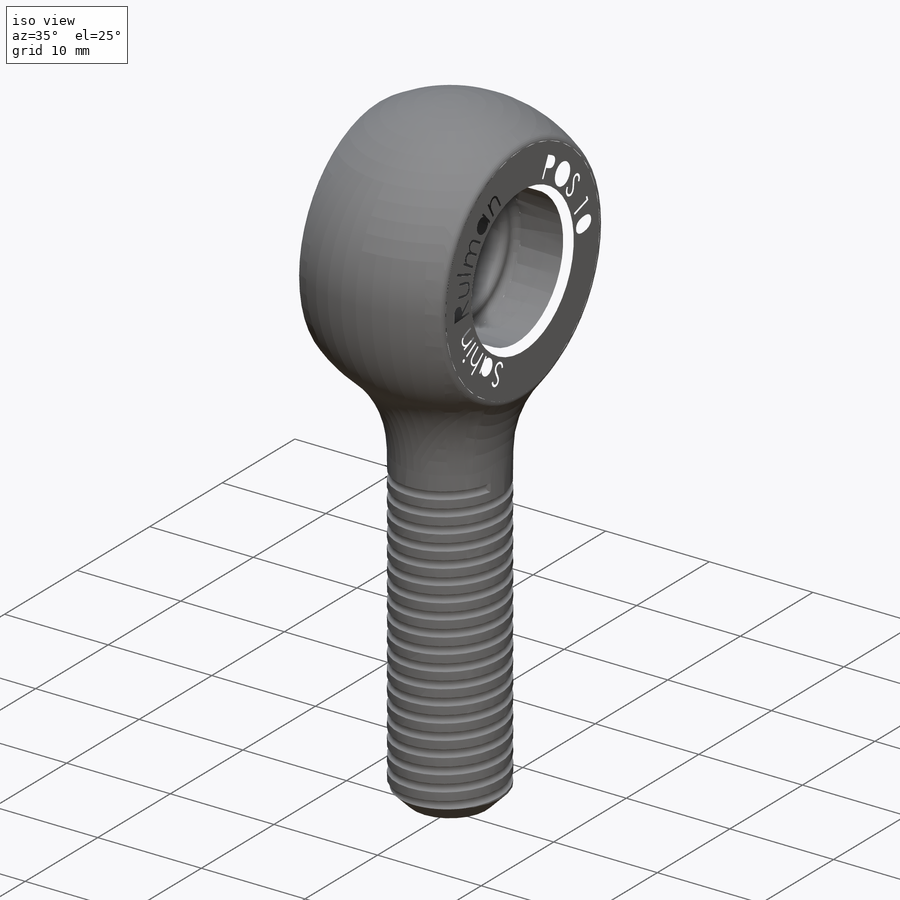
[diagram: iso view]
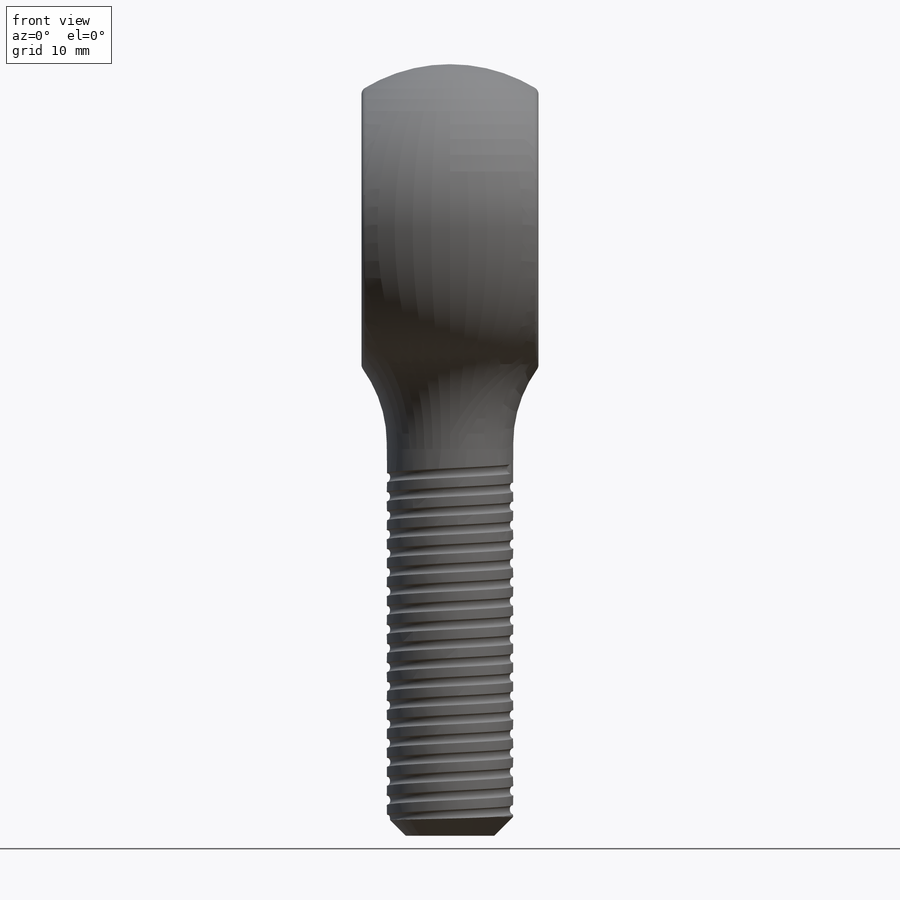
[diagram: front view]
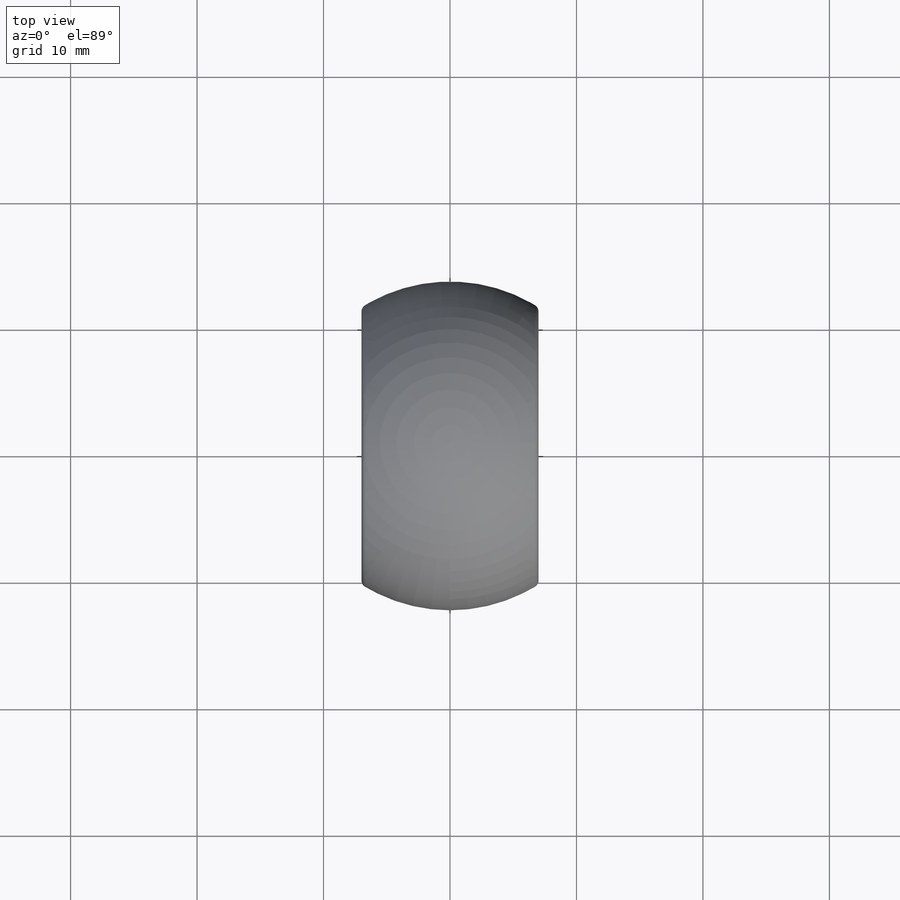
[diagram: top view]
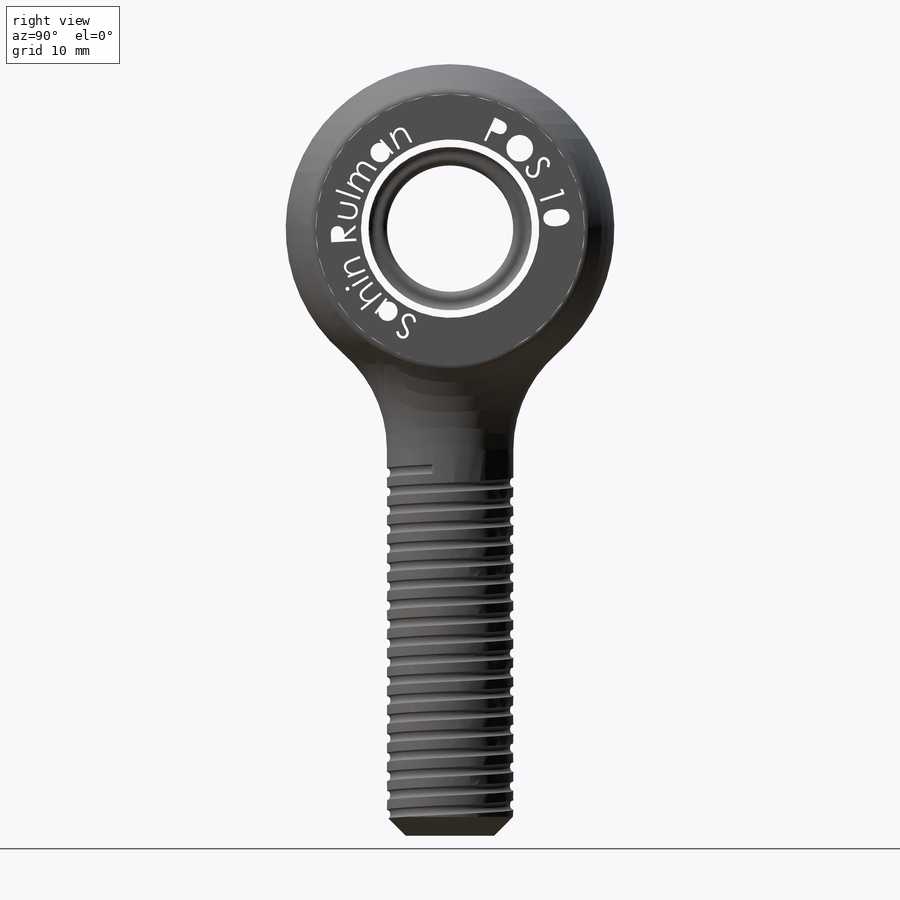
[diagram: right view]
SOLIDWORKS PART (.sldprt)
format: sldprt  version: not decoded by parser v0  size: 1,082,368 bytes
history: native  units: mm
features: sketch x9, cut_extrude x4, fillet x3, material x1, extrude x1, revolve x1, mirror x1, chamfer x1, helix x1, plane x1, sweep x1 (+11 scaffold rows collapsed)
feature tree (35):
  scaffold x11  (default folders/planes/origin — collapsed)
  material  "Material <not specified>"
  sketch  "Sketch1"  dims[D1=10.0mm]
  extrude  "Boss-Extrude1"  Depth=48mm
  sketch  "Sketch2"  dims[D1=26.0mm]
  revolve  "Revolve1"  Angle=360deg
  sketch  "Sketch4"  dims[D1=7.0mm D2=14.0mm]
  cut_extrude  "Cut-Extrude1"  Depth=48mm
  sketch  "Sketch5"  dims[D1=10.0mm]
  cut_extrude  "Cut-Extrude2"  [1 undecoded]
  sketch  "Sketch6"  dims[D1=12.9mm]
  cut_extrude  "Cut-Extrude3"  Depth=5.25mm
  mirror  "Mirror1"
  fillet  "Fillet1"  Radius=10mm
  fillet  "Fillet2"  Radius=0.6mm
  chamfer  "Chamfer1"  Distance=1.5mm Angle=45deg
  sketch  "Sketch7"
  helix  "Helix/Spiral1"  Pitch=29mm
  plane  "Plane1"
  sketch  "Sketch8"  dims[D1=0.75mm]
  sweep  "Cut-Sweep1"
  sketch  "Sketch9"  dims[D1=15.0mm]
  sketch  "Sketch10"
  cut_extrude  "Cut-Extrude4"  Depth=1mm
  fillet  "Fillet3"  Radius=0.6mm
decode coverage: 17 of 22 modeling features carry decoded parameters
note: 1 parameter value undecoded
note: suppression state not decoded; provenance and decode notes live in map.json
